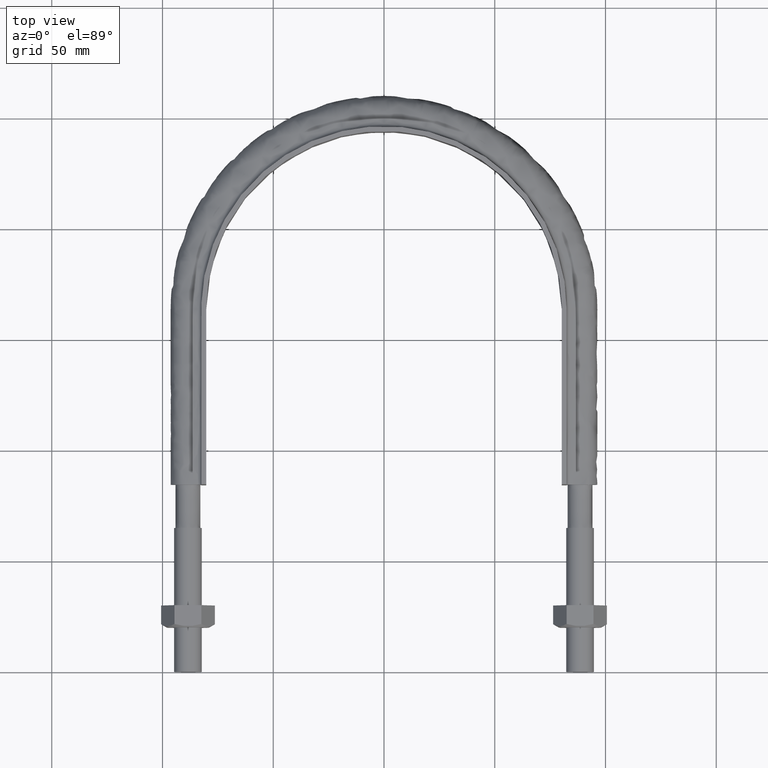
[diagram: clean part render]
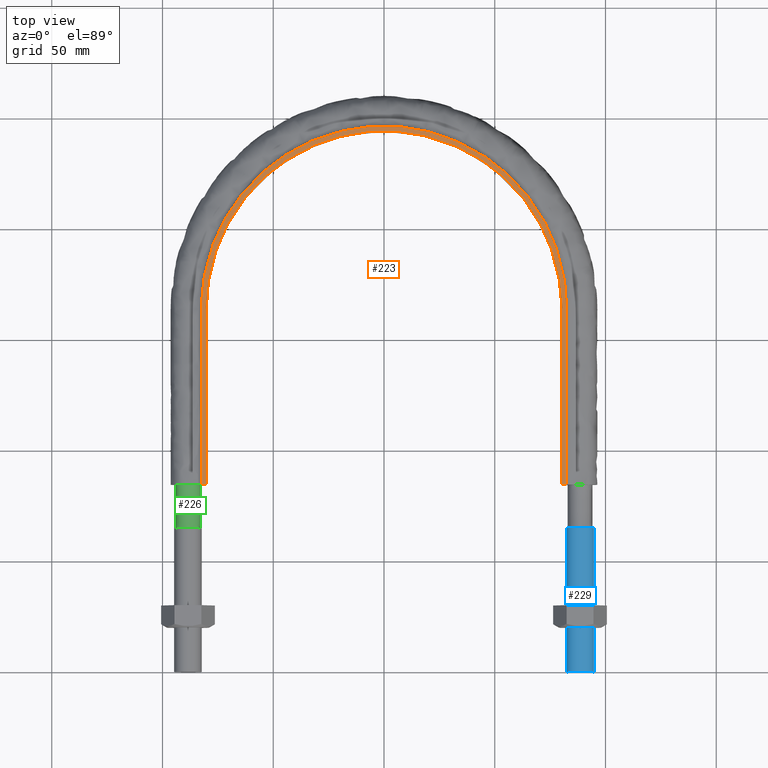
[diagram: same view with three faces highlighted in distinct colors, each labeled with its STEP entity id]
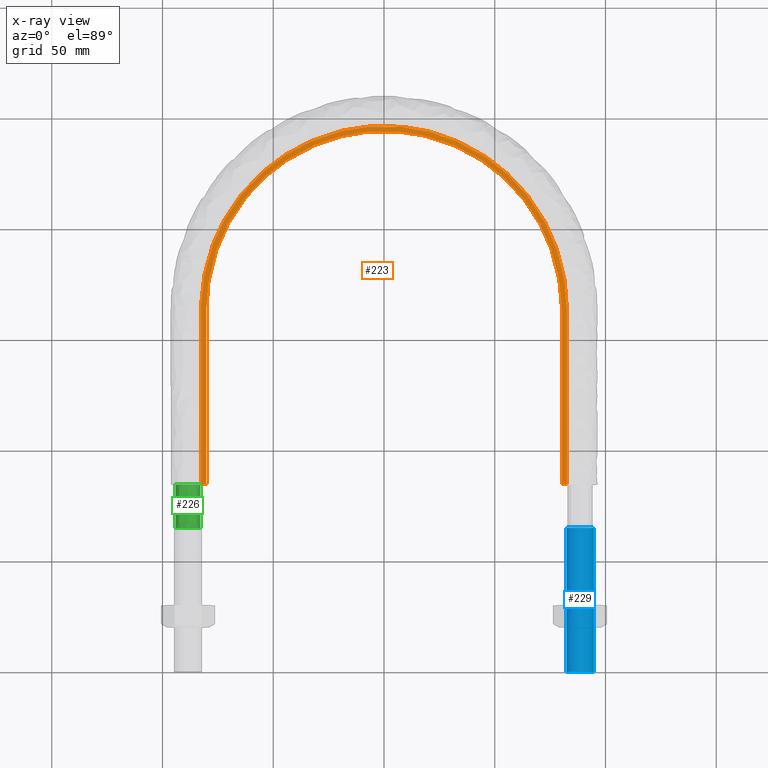
[diagram: x-ray of the same camera — body ghosted, the three highlighted faces saturated]
A machine part, top view with three faces highlighted in distinct colors.
The next image is the same camera in x-ray (body ghosted, the three faces saturated) — at least one of them is partly hidden behind the body in this view.
Their STEP definitions:

[orange] entity #223 — the highlighted planar face has unit normal (0, 0, 1).
#223 = ADVANCED_FACE( '', ( #270 ), #271, .T. );
#270 = FACE_OUTER_BOUND( '', #373, .T. );
#271 = PLANE( '', #374 );
#373 = EDGE_LOOP( '', ( #1420, #1421, #1422, #1423 ) );
#374 = AXIS2_PLACEMENT_3D( '', #1424, #1425, #1426 );
#1420 = ORIENTED_EDGE( '', *, *, #1657, .T. );
#1421 = ORIENTED_EDGE( '', *, *, #1667, .T. );
#1422 = ORIENTED_EDGE( '', *, *, #1666, .T. );
#1423 = ORIENTED_EDGE( '', *, *, #1668, .F. );
#1424 = CARTESIAN_POINT( '', ( 150.000000000000, 384.500000000000, 15.0000000000000 ) );
#1425 = DIRECTION( '', ( 0.000000000000000, 0.000000000000000, 1.00000000000000 ) );
#1426 = DIRECTION( '', ( 1.22460635382238E-016, 1.00000000000000, 0.000000000000000 ) );
#1657 = EDGE_CURVE( '', #1728, #1726, #1729, .T. );
#1666 = EDGE_CURVE( '', #1740, #1742, #1744, .T. );
#1667 = EDGE_CURVE( '', #1726, #1740, #1745, .T. );
#1668 = EDGE_CURVE( '', #1728, #1742, #1746, .F. );
#1726 = VERTEX_POINT( '', #1856 );
#1728 = VERTEX_POINT( '', #1859 );
#1729 = LINE( '', #1860, #1861 );
#1740 = VERTEX_POINT( '', #1948 );
#1742 = VERTEX_POINT( '', #1951 );
#1744 = LINE( '', #1983, #1984 );
#1745 = B_SPLINE_CURVE_WITH_KNOTS( '', 3, ( #1985, #1986, #1987, #1988, #1989, #1990, #1991, #1992, #1993, #1994, #1995, #1996, #1997, #1998, #1999, #2000, #2001, #2002 ), .UNSPECIFIED., .F., .F., ( 4, 3, 1, 1, 1, 1, 1, 1, 1, 1, 3, 4 ), ( -9.00000000000000, -8.00000000000000, -7.50000000000000, -7.00000000000000, -6.00000000000000, -5.00000000000000, -4.00000000000000, -3.00000000000000, -2.00000000000000, -1.50000000000000, -1.00000000000000, 0.000000000000000 ), .UNSPECIFIED. );
#1746 = B_SPLINE_CURVE_WITH_KNOTS( '', 3, ( #2003, #2004, #2005, #2006, #2007, #2008, #2009, #2010, #2011, #2012, #2013, #2014, #2015, #2016, #2017, #2018, #2019, #2020 ), .UNSPECIFIED., .F., .F., ( 4, 3, 1, 1, 1, 1, 1, 1, 1, 1, 3, 4 ), ( 0.000000000000000, 1.00000000000000, 1.50000000000000, 2.00000000000000, 3.00000000000000, 4.00000000000000, 5.00000000000000, 6.00000000000000, 7.00000000000000, 7.50000000000000, 8.00000000000000, 9.00000000000000 ), .UNSPECIFIED. );
#1856 = CARTESIAN_POINT( '', ( -80.2499999999999, 84.5000000000003, 15.0000000000000 ) );
#1859 = CARTESIAN_POINT( '', ( -82.4499999999999, 84.5000000000003, 15.0000000000000 ) );
#1860 = CARTESIAN_POINT( '', ( -150.000000000000, 84.5000000000003, 15.0000000000000 ) );
#1861 = VECTOR( '', #2314, 1000.00000000000 );
#1948 = CARTESIAN_POINT( '', ( 80.2500000000001, 84.5000000000003, 15.0000000000000 ) );
#1951 = CARTESIAN_POINT( '', ( 82.4500000000002, 84.5000000000003, 15.0000000000000 ) );
#1983 = CARTESIAN_POINT( '', ( -150.000000000000, 84.5000000000003, 15.0000000000000 ) );
#1984 = VECTOR( '', #2318, 1000.00000000000 );
#1985 = CARTESIAN_POINT( '', ( -80.2500000000000, 84.5000000000001, 14.9999999999999 ) );
#1986 = CARTESIAN_POINT( '', ( -80.2500000000000, 110.920000000000, 14.9999999999999 ) );
#1987 = CARTESIAN_POINT( '', ( -80.2500000000000, 137.340000000000, 14.9999999999999 ) );
#1988 = CARTESIAN_POINT( '', ( -80.2500000000000, 163.760000000000, 14.9999999999999 ) );
#1989 = CARTESIAN_POINT( '', ( -80.2500000000000, 169.750586735035, 14.9999999999999 ) );
#1990 = CARTESIAN_POINT( '', ( -78.8786264043398, 181.768376163953, 14.9999999999999 ) );
#1991 = CARTESIAN_POINT( '', ( -70.9339277239971, 204.577888193896, 14.9999999999999 ) );
#1992 = CARTESIAN_POINT( '', ( -51.7427931998640, 228.644676397937, 14.9999999999999 ) );
#1993 = CARTESIAN_POINT( '', ( -18.4670121667005, 244.668622663522, 14.9999999999999 ) );
#1994 = CARTESIAN_POINT( '', ( 18.4670121667005, 244.668622663522, 14.9999999999999 ) );
#1995 = CARTESIAN_POINT( '', ( 51.7427931998639, 228.644676397937, 14.9999999999999 ) );
#1996 = CARTESIAN_POINT( '', ( 70.9339277239970, 204.577888193896, 14.9999999999999 ) );
#1997 = CARTESIAN_POINT( '', ( 78.8786264043398, 181.768376163953, 14.9999999999999 ) );
#1998 = CARTESIAN_POINT( '', ( 80.2500000000000, 169.750586735035, 14.9999999999999 ) );
#1999 = CARTESIAN_POINT( '', ( 80.2499999999999, 163.760000000000, 14.9999999999999 ) );
#2000 = CARTESIAN_POINT( '', ( 80.2499999999999, 137.340000000000, 14.9999999999999 ) );
#2001 = CARTESIAN_POINT( '', ( 80.2499999999999, 110.920000000000, 14.9999999999999 ) );
#2002 = CARTESIAN_POINT( '', ( 80.2499999999999, 84.5000000000000, 14.9999999999999 ) );
#2003 = CARTESIAN_POINT( '', ( 82.4500000000000, 84.5000000000000, 15.0000000000000 ) );
#2004 = CARTESIAN_POINT( '', ( 82.4500000000000, 110.920000000000, 15.0000000000000 ) );
#2005 = CARTESIAN_POINT( '', ( 82.4500000000000, 137.340000000000, 15.0000000000000 ) );
#2006 = CARTESIAN_POINT( '', ( 82.4500000000000, 163.760000000000, 15.0000000000000 ) );
#2007 = CARTESIAN_POINT( '', ( 82.4500000000000, 169.917965282921, 15.0000000000000 ) );
#2008 = CARTESIAN_POINT( '', ( 81.0415063471974, 182.260747551918, 15.0000000000000 ) );
#2009 = CARTESIAN_POINT( '', ( 72.8782592641098, 205.697642595927, 15.0000000000000 ) );
#2010 = CARTESIAN_POINT( '', ( 53.1613822653425, 230.423193230709, 15.0000000000000 ) );
#2011 = CARTESIAN_POINT( '', ( 18.9732412542822, 246.886728985128, 15.0000000000000 ) );
#2012 = CARTESIAN_POINT( '', ( -18.9732412542821, 246.886728985128, 15.0000000000000 ) );
#2013 = CARTESIAN_POINT( '', ( -53.1613822653425, 230.423193230709, 15.0000000000000 ) );
#2014 = CARTESIAN_POINT( '', ( -72.8782592641097, 205.697642595926, 15.0000000000000 ) );
#2015 = CARTESIAN_POINT( '', ( -81.0415063471973, 182.260747551918, 15.0000000000000 ) );
#2016 = CARTESIAN_POINT( '', ( -82.4500000000000, 169.917965282921, 15.0000000000000 ) );
#2017 = CARTESIAN_POINT( '', ( -82.4500000000000, 163.760000000000, 15.0000000000000 ) );
#2018 = CARTESIAN_POINT( '', ( -82.4500000000000, 137.340000000000, 15.0000000000000 ) );
#2019 = CARTESIAN_POINT( '', ( -82.4500000000000, 110.920000000000, 15.0000000000000 ) );
#2020 = CARTESIAN_POINT( '', ( -82.4500000000000, 84.5000000000001, 15.0000000000000 ) );
#2314 = DIRECTION( '', ( 1.00000000000000, -1.22460635382238E-016, 0.000000000000000 ) );
#2318 = DIRECTION( '', ( 1.00000000000000, -1.22460635382238E-016, 0.000000000000000 ) );

[blue] entity #229 — the highlighted cylindrical surface (bore or boss wall) has radius 6.25 mm, axis along (0, 1, -0).
#229 = ADVANCED_FACE( '', ( #286, #287 ), #288, .T. );
#286 = FACE_OUTER_BOUND( '', #1298, .T. );
#287 = FACE_OUTER_BOUND( '', #1299, .T. );
#288 = CYLINDRICAL_SURFACE( '', #1300, 6.25000000000001 );
#1298 = EDGE_LOOP( '', ( #1463 ) );
#1299 = EDGE_LOOP( '', ( #1464 ) );
#1300 = AXIS2_PLACEMENT_3D( '', #1465, #1466, #1467 );
#1463 = ORIENTED_EDGE( '', *, *, #1673, .T. );
#1464 = ORIENTED_EDGE( '', *, *, #1674, .F. );
#1465 = CARTESIAN_POINT( '', ( 88.5000000000000, 65.0000000000000, -1.98998532496136E-014 ) );
#1466 = DIRECTION( '', ( 2.44921270764476E-016, 1.00000000000000, -3.06151588455594E-016 ) );
#1467 = DIRECTION( '', ( 1.00000000000000, -2.44921270764475E-016, 0.000000000000000 ) );
#1673 = EDGE_CURVE( '', #1755, #1755, #1756, .T. );
#1674 = EDGE_CURVE( '', #1757, #1757, #1758, .T. );
#1755 = VERTEX_POINT( '', #2069 );
#1756 = CIRCLE( '', #2070, 6.25000000000001 );
#1757 = VERTEX_POINT( '', #2071 );
#1758 = CIRCLE( '', #2072, 6.25000000000001 );
#2069 = CARTESIAN_POINT( '', ( 94.7500000000000, 65.0000000000000, -1.98998532496136E-014 ) );
#2070 = AXIS2_PLACEMENT_3D( '', #2319, #2320, #2321 );
#2071 = CARTESIAN_POINT( '', ( 94.7500000000000, -2.32062904049340E-014, 0.000000000000000 ) );
#2072 = AXIS2_PLACEMENT_3D( '', #2322, #2323, #2324 );
#2319 = CARTESIAN_POINT( '', ( 88.5000000000000, 65.0000000000000, -1.98998532496136E-014 ) );
#2320 = DIRECTION( '', ( -2.44921270764475E-016, -1.00000000000000, 3.06151588455594E-016 ) );
#2321 = DIRECTION( '', ( 1.00000000000000, -2.44921270764475E-016, -7.54721935012283E-047 ) );
#2322 = CARTESIAN_POINT( '', ( 88.5000000000000, -2.16755324626561E-014, 4.71701209382677E-046 ) );
#2323 = DIRECTION( '', ( -2.44921270764475E-016, -1.00000000000000, 3.06151588455594E-016 ) );
#2324 = DIRECTION( '', ( 1.00000000000000, -2.44921270764475E-016, -7.54721935012283E-047 ) );

[green] entity #226 — the highlighted face is a SurfaceOfExtrusion surface.
#226 = ADVANCED_FACE( '', ( #277, #278 ), #279, .T. );
#277 = FACE_OUTER_BOUND( '', #1112, .T. );
#278 = FACE_OUTER_BOUND( '', #1113, .T. );
#279 = SURFACE_OF_LINEAR_EXTRUSION( '', #1114, #1115 );
#1112 = EDGE_LOOP( '', ( #1433 ) );
#1113 = EDGE_LOOP( '', ( #1434 ) );
#1114 = B_SPLINE_CURVE_WITH_KNOTS( '', 3, ( #1435, #1436, #1437, #1438, #1439, #1440, #1441, #1442, #1443, #1444, #1445 ), .UNSPECIFIED., .T., .F., ( 4, 1, 1, 1, 1, 1, 1, 1, 4 ), ( 0.000000000000000, 0.125000000000000, 0.250000000000000, 0.375000000000000, 0.500000000000000, 0.625000000000000, 0.750000000000000, 0.875000000000000, 1.00000000000000 ), .UNSPECIFIED. );
#1115 = VECTOR( '', #1446, 1000.00000000000 );
#1433 = ORIENTED_EDGE( '', *, *, #1669, .F. );
#1434 = ORIENTED_EDGE( '', *, *, #1670, .T. );
#1435 = CARTESIAN_POINT( '', ( -82.9000000000000, 36.0000000000002, 2.16840434497101E-016 ) );
#1436 = CARTESIAN_POINT( '', ( -82.9000000000000, 36.0000000000002, -1.46274169979695 ) );
#1437 = CARTESIAN_POINT( '', ( -84.1117749006091, 36.0000000000002, -4.38822509939085 ) );
#1438 = CARTESIAN_POINT( '', ( -88.5000000000000, 36.0000000000002, -6.20588745030457 ) );
#1439 = CARTESIAN_POINT( '', ( -92.8882250993909, 36.0000000000002, -4.38822509939085 ) );
#1440 = CARTESIAN_POINT( '', ( -94.7058874503046, 36.0000000000002, 7.59976920274952E-016 ) );
#1441 = CARTESIAN_POINT( '', ( -92.8882250993909, 36.0000000000002, 4.38822509939085 ) );
#1442 = CARTESIAN_POINT( '', ( -88.5000000000000, 36.0000000000002, 6.20588745030457 ) );
#1443 = CARTESIAN_POINT( '', ( -84.1117749006091, 36.0000000000002, 4.38822509939085 ) );
#1444 = CARTESIAN_POINT( '', ( -82.9000000000000, 36.0000000000002, 1.46274169979695 ) );
#1445 = CARTESIAN_POINT( '', ( -82.9000000000000, 36.0000000000002, 2.16840434497101E-016 ) );
#1446 = DIRECTION( '', ( 1.22460635382238E-016, 1.00000000000000, 0.000000000000000 ) );
#1669 = EDGE_CURVE( '', #1747, #1747, #1748, .T. );
#1670 = EDGE_CURVE( '', #1749, #1749, #1750, .T. );
#1747 = VERTEX_POINT( '', #2021 );
#1748 = B_SPLINE_CURVE_WITH_KNOTS( '', 3, ( #2022, #2023, #2024, #2025, #2026, #2027, #2028, #2029, #2030, #2031, #2032 ), .UNSPECIFIED., .T., .F., ( 4, 1, 1, 1, 1, 1, 1, 1, 4 ), ( 0.000000000000000, 0.125000000000000, 0.250000000000000, 0.375000000000000, 0.500000000000000, 0.625000000000000, 0.750000000000000, 0.875000000000000, 1.00000000000000 ), .UNSPECIFIED. );
#1749 = VERTEX_POINT( '', #2033 );
#1750 = B_SPLINE_CURVE_WITH_KNOTS( '', 3, ( #2034, #2035, #2036, #2037, #2038, #2039, #2040, #2041, #2042, #2043, #2044 ), .UNSPECIFIED., .T., .F., ( 4, 1, 1, 1, 1, 1, 1, 1, 4 ), ( 0.000000000000000, 0.125000000000000, 0.250000000000000, 0.375000000000000, 0.500000000000000, 0.625000000000000, 0.750000000000000, 0.875000000000000, 1.00000000000000 ), .UNSPECIFIED. );
#2021 = CARTESIAN_POINT( '', ( -82.9000000000000, 84.5000000000002, 2.16840434497101E-016 ) );
#2022 = CARTESIAN_POINT( '', ( -82.9000000000000, 84.5000000000002, 2.16840434497101E-016 ) );
#2023 = CARTESIAN_POINT( '', ( -82.9000000000000, 84.5000000000002, -1.46274169979695 ) );
#2024 = CARTESIAN_POINT( '', ( -84.1117749006091, 84.5000000000002, -4.38822509939085 ) );
#2025 = CARTESIAN_POINT( '', ( -88.5000000000000, 84.5000000000002, -6.20588745030457 ) );
#2026 = CARTESIAN_POINT( '', ( -92.8882250993908, 84.5000000000002, -4.38822509939085 ) );
#2027 = CARTESIAN_POINT( '', ( -94.7058874503045, 84.5000000000002, 7.59976920274952E-016 ) );
#2028 = CARTESIAN_POINT( '', ( -92.8882250993908, 84.5000000000002, 4.38822509939085 ) );
#2029 = CARTESIAN_POINT( '', ( -88.5000000000000, 84.5000000000002, 6.20588745030457 ) );
#2030 = CARTESIAN_POINT( '', ( -84.1117749006091, 84.5000000000002, 4.38822509939085 ) );
#2031 = CARTESIAN_POINT( '', ( -82.9000000000000, 84.5000000000002, 1.46274169979695 ) );
#2032 = CARTESIAN_POINT( '', ( -82.9000000000000, 84.5000000000002, 2.16840434497101E-016 ) );
#2033 = CARTESIAN_POINT( '', ( -82.9000000000000, 65.0000000000000, 2.16840434497101E-016 ) );
#2034 = CARTESIAN_POINT( '', ( -82.9000000000000, 65.0000000000000, 2.16840434497101E-016 ) );
#2035 = CARTESIAN_POINT( '', ( -82.9000000000000, 65.0000000000000, -1.46274169979695 ) );
#2036 = CARTESIAN_POINT( '', ( -84.1117749006091, 65.0000000000000, -4.38822509939085 ) );
#2037 = CARTESIAN_POINT( '', ( -88.5000000000000, 65.0000000000000, -6.20588745030457 ) );
#2038 = CARTESIAN_POINT( '', ( -92.8882250993908, 65.0000000000000, -4.38822509939085 ) );
#2039 = CARTESIAN_POINT( '', ( -94.7058874503045, 65.0000000000000, 7.59976920274952E-016 ) );
#2040 = CARTESIAN_POINT( '', ( -92.8882250993908, 65.0000000000000, 4.38822509939085 ) );
#2041 = CARTESIAN_POINT( '', ( -88.5000000000000, 65.0000000000000, 6.20588745030457 ) );
#2042 = CARTESIAN_POINT( '', ( -84.1117749006091, 65.0000000000000, 4.38822509939085 ) );
#2043 = CARTESIAN_POINT( '', ( -82.9000000000000, 65.0000000000000, 1.46274169979695 ) );
#2044 = CARTESIAN_POINT( '', ( -82.9000000000000, 65.0000000000000, 2.16840434497101E-016 ) );